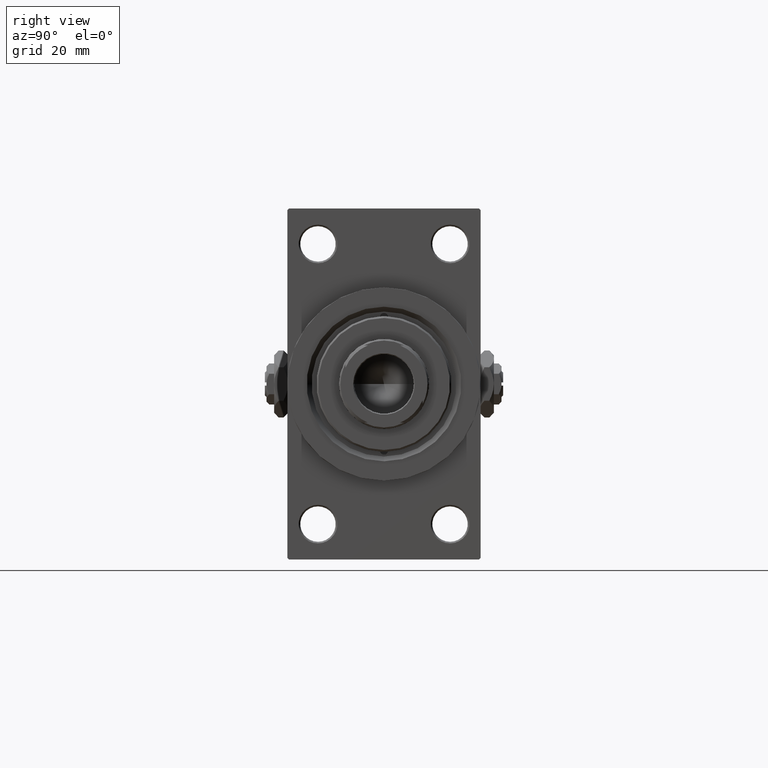
[diagram: clean part render]
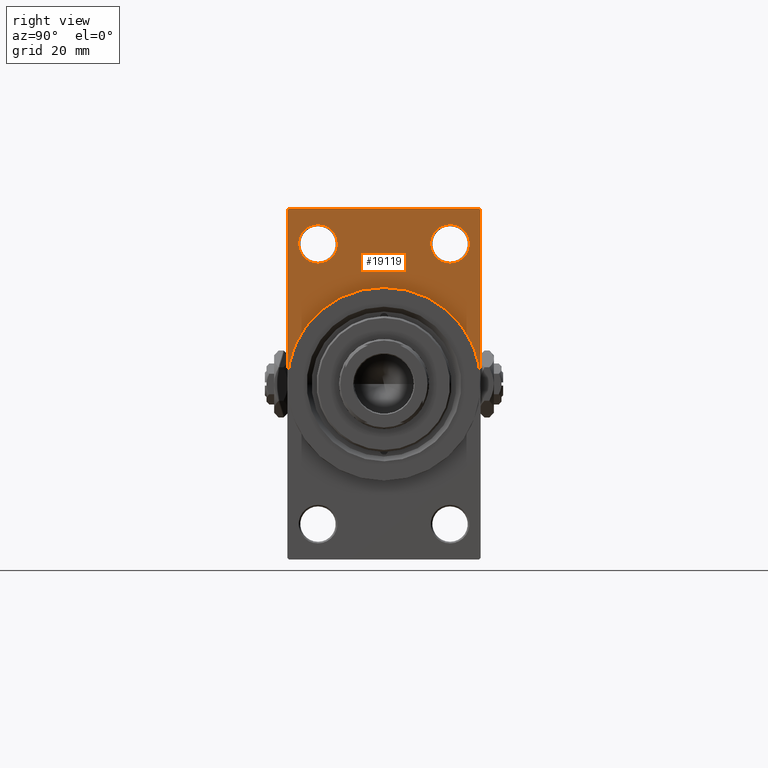
[diagram: same view with one face highlighted and labeled with its STEP entity id]
A machine part, right view. The second image highlights one B-rep face of the part: STEP entity #19119.
In plain terms, the highlighted planar face has unit normal (-1, 0, 0).
Its self-contained STEP definition (entity closure, byte-faithful):
#108 = FACE_OUTER_BOUND ( 'NONE', #29584, .T. ) ;
#606 = FACE_BOUND ( 'NONE', #38077, .T. ) ;
#696 = LINE ( 'NONE', #23183, #3220 ) ;
#974 = EDGE_CURVE ( 'NONE', #43099, #43847, #10119, .T. ) ;
#1371 = CARTESIAN_POINT ( 'NONE',  ( 138.0000000000000000, 29.99999999999999645, 54.49999999999999289 ) ) ;
#1667 = CARTESIAN_POINT ( 'NONE',  ( 138.0000000000000000, 0.000000000000000000, 30.00000000000000000 ) ) ;
#3037 = DIRECTION ( 'NONE',  ( 0.000000000000000000, 0.000000000000000000, -1.000000000000000000 ) ) ;
#3220 = VECTOR ( 'NONE', #7152, 1000.000000000000000 ) ;
#5781 = AXIS2_PLACEMENT_3D ( 'NONE', #45942, #37259, #19150 ) ;
#5803 = CARTESIAN_POINT ( 'NONE',  ( 138.0000000000000000, -20.50000000000000000, 37.49999999999990763 ) ) ;
#5814 = AXIS2_PLACEMENT_3D ( 'NONE', #43568, #48265, #36832 ) ;
#6027 = ORIENTED_EDGE ( 'NONE', *, *, #42332, .T. ) ;
#6824 = DIRECTION ( 'NONE',  ( 0.000000000000000000, 0.000000000000000000, -1.000000000000000000 ) ) ;
#7070 = LINE ( 'NONE', #44481, #43034 ) ;
#7152 = DIRECTION ( 'NONE',  ( 0.000000000000000000, 0.000000000000000000, -1.000000000000000000 ) ) ;
#7426 = VERTEX_POINT ( 'NONE', #27306 ) ;
#7948 = CARTESIAN_POINT ( 'NONE',  ( 138.0000000000000000, -30.00000000000000000, 53.99999999999997158 ) ) ;
#8046 = DIRECTION ( 'NONE',  ( -1.000000000000000000, 0.000000000000000000, -0.000000000000000000 ) ) ;
#9134 = AXIS2_PLACEMENT_3D ( 'NONE', #27129, #11785, #26877 ) ;
#9344 = VERTEX_POINT ( 'NONE', #27886 ) ;
#9354 = AXIS2_PLACEMENT_3D ( 'NONE', #44304, #39850, #21707 ) ;
#9729 = DIRECTION ( 'NONE',  ( 0.000000000000000000, -0.7071067811865279218, 0.7071067811865671127 ) ) ;
#9925 = ORIENTED_EDGE ( 'NONE', *, *, #27301, .F. ) ;
#10119 = CIRCLE ( 'NONE', #9354, 30.00000000000000000 ) ;
#10461 = CARTESIAN_POINT ( 'NONE',  ( 138.0000000000000000, 0.000000000000000000, 0.000000000000000000 ) ) ;
#11092 = EDGE_LOOP ( 'NONE', ( #29599, #31819 ) ) ;
#11785 = DIRECTION ( 'NONE',  ( -1.000000000000000000, 0.000000000000000000, -0.000000000000000000 ) ) ;
#12457 = AXIS2_PLACEMENT_3D ( 'NONE', #18123, #25558, #33247 ) ;
#13283 = EDGE_CURVE ( 'NONE', #9344, #43847, #696, .T. ) ;
#13869 = AXIS2_PLACEMENT_3D ( 'NONE', #10461, #29022, #3037 ) ;
#14367 = ORIENTED_EDGE ( 'NONE', *, *, #974, .F. ) ;
#15422 = CIRCLE ( 'NONE', #13869, 30.00000000000000000 ) ;
#15699 = FACE_BOUND ( 'NONE', #11092, .T. ) ;
#15886 = EDGE_CURVE ( 'NONE', #27689, #9344, #41857, .T. ) ;
#15895 = VERTEX_POINT ( 'NONE', #34430 ) ;
#16058 = CARTESIAN_POINT ( 'NONE',  ( 138.0000000000000000, -20.50000000000000000, 49.50000000000008527 ) ) ;
#16898 = CIRCLE ( 'NONE', #5814, 6.000000000000088818 ) ;
#16917 = VERTEX_POINT ( 'NONE', #48572 ) ;
#17409 = ORIENTED_EDGE ( 'NONE', *, *, #21453, .T. ) ;
#17670 = DIRECTION ( 'NONE',  ( 0.000000000000000000, -1.000000000000000000, 1.156482317317871478E-16 ) ) ;
#17813 = ORIENTED_EDGE ( 'NONE', *, *, #13283, .T. ) ;
#18123 = CARTESIAN_POINT ( 'NONE',  ( 138.0000000000000000, -20.50000000000000000, 43.50000000000000000 ) ) ;
#19119 = ADVANCED_FACE ( 'NONE', ( #606, #15699, #108 ), #45687, .F. ) ;
#19150 = DIRECTION ( 'NONE',  ( -0.000000000000000000, 0.000000000000000000, 1.000000000000000000 ) ) ;
#19303 = DIRECTION ( 'NONE',  ( -0.000000000000000000, -0.7071067811865451302, -0.7071067811865500152 ) ) ;
#19348 = VERTEX_POINT ( 'NONE', #5803 ) ;
#20155 = EDGE_CURVE ( 'NONE', #22463, #48406, #16898, .T. ) ;
#20247 = CARTESIAN_POINT ( 'NONE',  ( 138.0000000000000000, 20.50000000000000000, 37.49999999999990763 ) ) ;
#21171 = CARTESIAN_POINT ( 'NONE',  ( 138.0000000000000000, 20.50000000000000000, 49.50000000000008527 ) ) ;
#21274 = EDGE_CURVE ( 'NONE', #16917, #7426, #7070, .T. ) ;
#21453 = EDGE_CURVE ( 'NONE', #19348, #45400, #38270, .T. ) ;
#21707 = DIRECTION ( 'NONE',  ( 0.000000000000000000, 0.000000000000000000, -1.000000000000000000 ) ) ;
#22463 = VERTEX_POINT ( 'NONE', #21171 ) ;
#23102 = DIRECTION ( 'NONE',  ( 0.000000000000000000, 0.000000000000000000, 1.000000000000000000 ) ) ;
#23138 = CARTESIAN_POINT ( 'NONE',  ( 138.0000000000000000, -29.49999999999997513, 54.50000000000000000 ) ) ;
#23183 = CARTESIAN_POINT ( 'NONE',  ( 138.0000000000000000, -30.00000000000000000, 54.50000000000000000 ) ) ;
#24634 = VECTOR ( 'NONE', #19303, 1000.000000000000114 ) ;
#25234 = ORIENTED_EDGE ( 'NONE', *, *, #35248, .T. ) ;
#25558 = DIRECTION ( 'NONE',  ( -1.000000000000000000, 0.000000000000000000, -0.000000000000000000 ) ) ;
#25880 = CIRCLE ( 'NONE', #12457, 6.000000000000088818 ) ;
#26434 = LINE ( 'NONE', #40408, #48161 ) ;
#26877 = DIRECTION ( 'NONE',  ( 0.000000000000000000, 0.000000000000000000, 1.000000000000000000 ) ) ;
#27129 = CARTESIAN_POINT ( 'NONE',  ( 138.0000000000000000, 20.50000000000000000, 43.50000000000000000 ) ) ;
#27247 = AXIS2_PLACEMENT_3D ( 'NONE', #45691, #8046, #23102 ) ;
#27301 = EDGE_CURVE ( 'NONE', #7426, #43099, #15422, .T. ) ;
#27306 = CARTESIAN_POINT ( 'NONE',  ( 138.0000000000000000, 30.00000000000000000, 0.000000000000000000 ) ) ;
#27689 = VERTEX_POINT ( 'NONE', #23138 ) ;
#27716 = ORIENTED_EDGE ( 'NONE', *, *, #15886, .T. ) ;
#27815 = EDGE_CURVE ( 'NONE', #48406, #22463, #43908, .T. ) ;
#27886 = CARTESIAN_POINT ( 'NONE',  ( 138.0000000000000000, -30.00000000000000000, 53.99999999999997158 ) ) ;
#29022 = DIRECTION ( 'NONE',  ( 1.000000000000000000, 0.000000000000000000, 0.000000000000000000 ) ) ;
#29584 = EDGE_LOOP ( 'NONE', ( #25234, #27716, #17813, #14367, #9925, #36638, #37224 ) ) ;
#29599 = ORIENTED_EDGE ( 'NONE', *, *, #27815, .T. ) ;
#31819 = ORIENTED_EDGE ( 'NONE', *, *, #20155, .T. ) ;
#33247 = DIRECTION ( 'NONE',  ( 0.000000000000000000, 0.000000000000000000, 1.000000000000000000 ) ) ;
#34430 = CARTESIAN_POINT ( 'NONE',  ( 138.0000000000000000, 29.50000000000002132, 54.49999999999999289 ) ) ;
#35248 = EDGE_CURVE ( 'NONE', #15895, #27689, #35283, .T. ) ;
#35283 = LINE ( 'NONE', #1371, #39440 ) ;
#35540 = EDGE_CURVE ( 'NONE', #16917, #15895, #26434, .T. ) ;
#36638 = ORIENTED_EDGE ( 'NONE', *, *, #21274, .F. ) ;
#36832 = DIRECTION ( 'NONE',  ( 0.000000000000000000, 0.000000000000000000, 1.000000000000000000 ) ) ;
#37224 = ORIENTED_EDGE ( 'NONE', *, *, #35540, .T. ) ;
#37259 = DIRECTION ( 'NONE',  ( -1.000000000000000000, 0.000000000000000000, -0.000000000000000000 ) ) ;
#38077 = EDGE_LOOP ( 'NONE', ( #17409, #6027 ) ) ;
#38270 = CIRCLE ( 'NONE', #27247, 6.000000000000088818 ) ;
#39440 = VECTOR ( 'NONE', #17670, 1000.000000000000000 ) ;
#39850 = DIRECTION ( 'NONE',  ( 1.000000000000000000, 0.000000000000000000, 0.000000000000000000 ) ) ;
#40408 = CARTESIAN_POINT ( 'NONE',  ( 138.0000000000000000, 29.50000000000002132, 54.49999999999999289 ) ) ;
#41857 = LINE ( 'NONE', #7948, #24634 ) ;
#42332 = EDGE_CURVE ( 'NONE', #45400, #19348, #25880, .T. ) ;
#42844 = CARTESIAN_POINT ( 'NONE',  ( 138.0000000000000000, -30.00000000000000000, 0.000000000000000000 ) ) ;
#43034 = VECTOR ( 'NONE', #6824, 1000.000000000000000 ) ;
#43099 = VERTEX_POINT ( 'NONE', #1667 ) ;
#43568 = CARTESIAN_POINT ( 'NONE',  ( 138.0000000000000000, 20.50000000000000000, 43.50000000000000000 ) ) ;
#43847 = VERTEX_POINT ( 'NONE', #42844 ) ;
#43908 = CIRCLE ( 'NONE', #9134, 6.000000000000088818 ) ;
#44304 = CARTESIAN_POINT ( 'NONE',  ( 138.0000000000000000, 0.000000000000000000, 0.000000000000000000 ) ) ;
#44481 = CARTESIAN_POINT ( 'NONE',  ( 138.0000000000000000, 29.99999999999999645, 54.49999999999999289 ) ) ;
#45400 = VERTEX_POINT ( 'NONE', #16058 ) ;
#45687 = PLANE ( 'NONE',  #5781 ) ;
#45691 = CARTESIAN_POINT ( 'NONE',  ( 138.0000000000000000, -20.50000000000000000, 43.50000000000000000 ) ) ;
#45942 = CARTESIAN_POINT ( 'NONE',  ( 138.0000000000000000, 0.000000000000000000, 0.000000000000000000 ) ) ;
#48161 = VECTOR ( 'NONE', #9729, 1000.000000000000000 ) ;
#48265 = DIRECTION ( 'NONE',  ( -1.000000000000000000, 0.000000000000000000, -0.000000000000000000 ) ) ;
#48406 = VERTEX_POINT ( 'NONE', #20247 ) ;
#48572 = CARTESIAN_POINT ( 'NONE',  ( 138.0000000000000000, 29.99999999999999645, 53.99999999999999289 ) ) ;